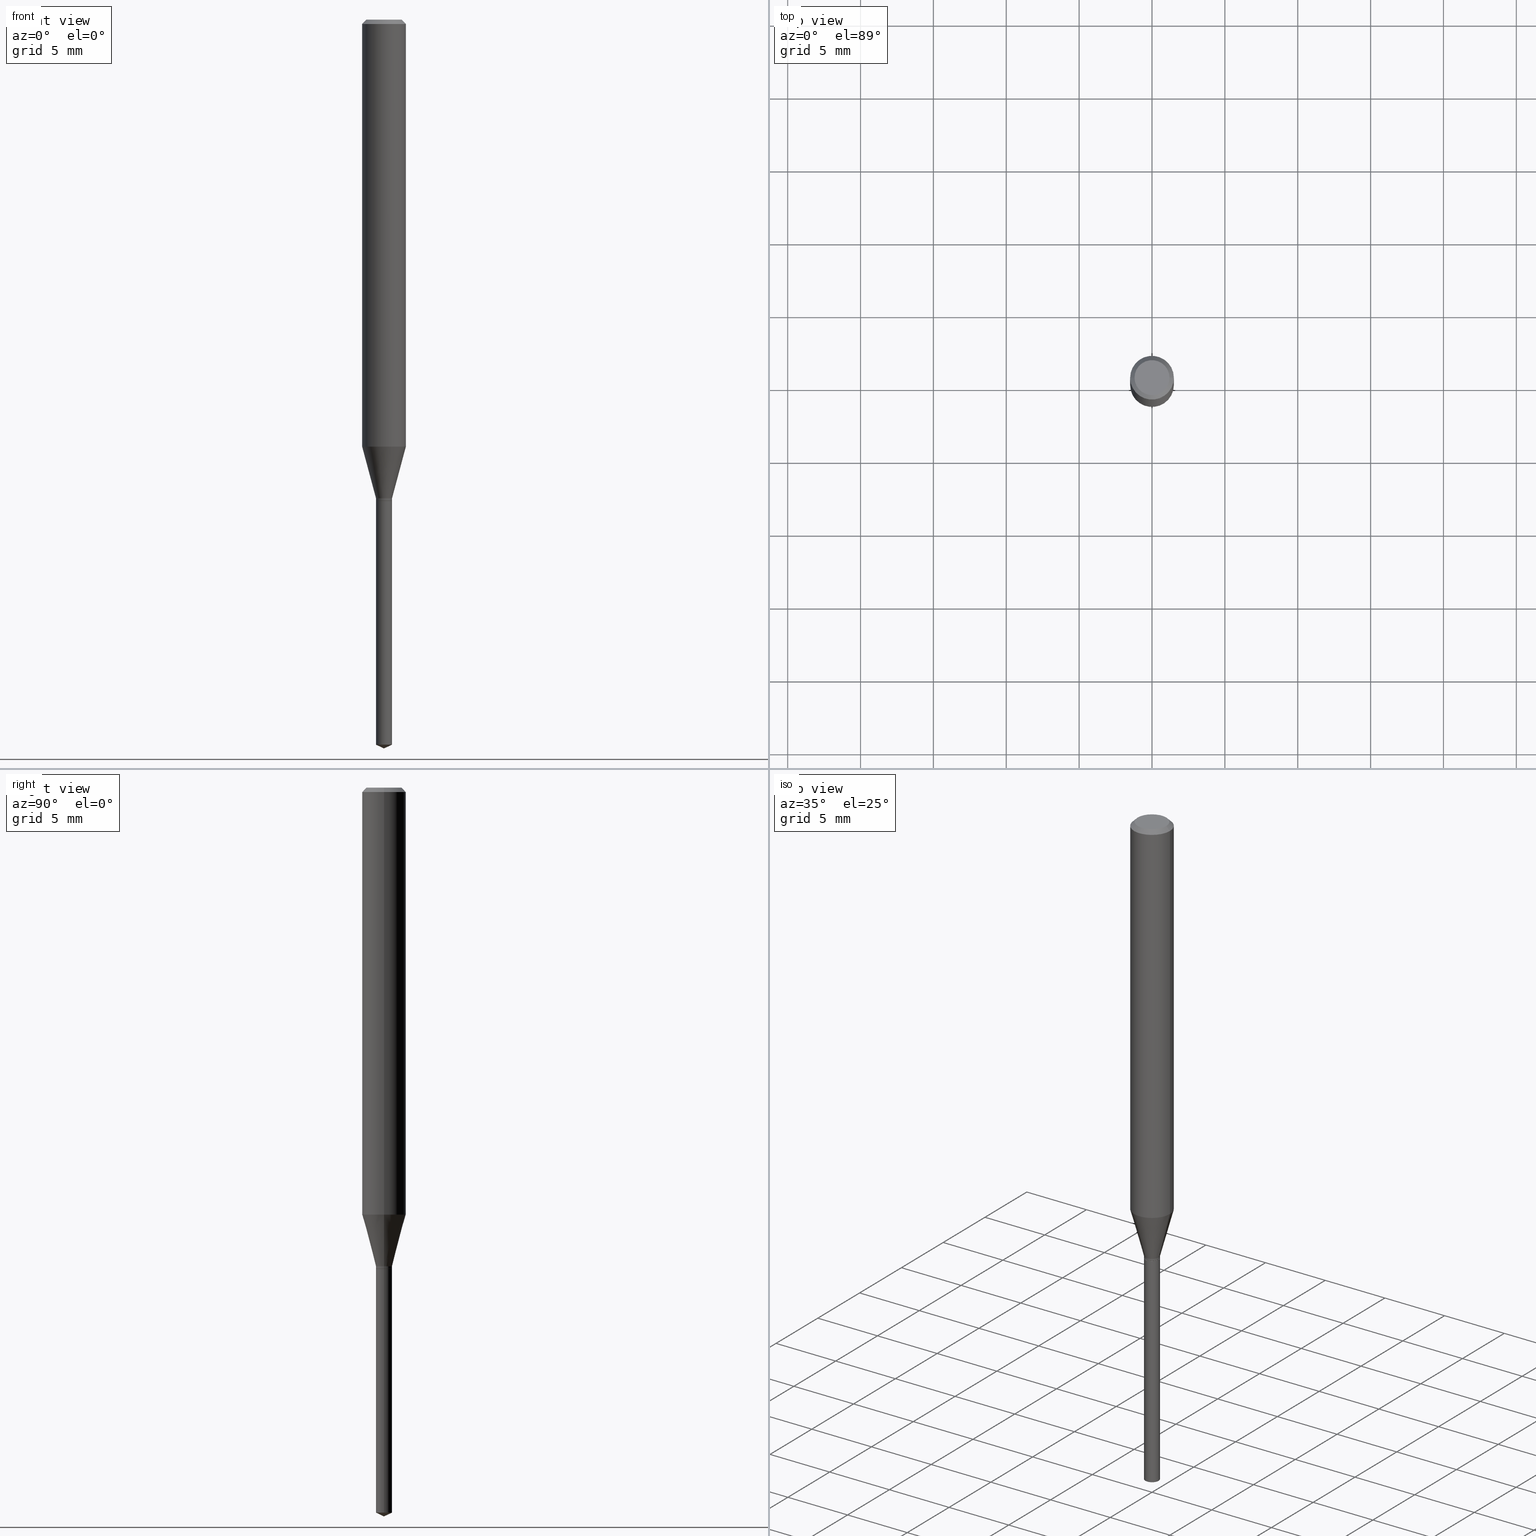
[diagram: canonical four-view strip — front | top / right | iso, engineering-drawing reading convention]
A machine part, canonical four-view strip (front | top / right | iso — engineering-drawing reading convention). The complete STEP part file that produces these views, byte-faithful:
ISO-10303-21;
HEADER;
FILE_DESCRIPTION (( 'STEP AP203' ),
    '1' );
FILE_NAME ('08151.STEP',
    '2024-04-24T13:13:14',
    ( '' ),
    ( '' ),
    'SwSTEP 2.0',
    'SolidWorks 2023',
    '' );
FILE_SCHEMA (( 'CONFIG_CONTROL_DESIGN' ));
ENDSEC;

DATA;
#1 = ORIENTED_EDGE ( 'NONE', *, *, #398, .F. ) ;
#2 = ORIENTED_EDGE ( 'NONE', *, *, #43, .T. ) ;
#3 = AXIS2_PLACEMENT_3D ( 'NONE', #163, #123, #161 ) ;
#4 = AXIS2_PLACEMENT_3D ( 'NONE', #292, #297, #401 ) ;
#5 = DIRECTION ( 'NONE',  ( 2.445468806185136597E-29, -3.491481338843145583E-15, -1.000000000000000000 ) ) ;
#6 = ORIENTED_EDGE ( 'NONE', *, *, #196, .T. ) ;
#7 = CARTESIAN_POINT ( 'NONE',  ( 4.132873053354867254E-48, -5.900647395337818946E-34, -1.690012582823346072E-19 ) ) ;
#8 = ADVANCED_FACE ( 'NONE', ( #469 ), #195, .T. ) ;
#9 = CIRCLE ( 'NONE', #22, 0.02114999999999999866 ) ;
#10 = DIRECTION ( 'NONE',  ( -2.445468806185136597E-29, 3.491481338843145583E-15, 1.000000000000000000 ) ) ;
#11 = CARTESIAN_POINT ( 'NONE',  ( 0.05905000000000000526, -4.535783407291119586E-16, -0.01181000000000007565 ) ) ;
#12 = CARTESIAN_POINT ( 'NONE',  ( 3.178375807398821559E-29, -4.537878296094435448E-15, -1.299699999999999855 ) ) ;
#13 = APPROVAL_DATE_TIME ( #16, #396 ) ;
#14 = ORIENTED_EDGE ( 'NONE', *, *, #234, .T. ) ;
#15 = CIRCLE ( 'NONE', #62, 0.02165000000000002686 ) ;
#16 = DATE_AND_TIME ( #359, #353 ) ;
#17 = FACE_OUTER_BOUND ( 'NONE', #157, .T. ) ;
#18 = DIRECTION ( 'NONE',  ( -2.445468806185136597E-29, 3.491481338843145583E-15, 1.000000000000000000 ) ) ;
#19 = ORIENTED_EDGE ( 'NONE', *, *, #293, .T. ) ;
#20 = PERSON_AND_ORGANIZATION_ROLE ( 'creator' ) ;
#21 = DIRECTION ( 'NONE',  ( 1.000000000000000000, -6.982962677686266711E-15, 4.876185090822587894E-29 ) ) ;
#22 = AXIS2_PLACEMENT_3D ( 'NONE', #371, #336, #366 ) ;
#23 = PERSON_AND_ORGANIZATION ( #288, #402 ) ;
#24 = VECTOR ( 'NONE', #435, 39.37007874015748143 ) ;
#25 = DIRECTION ( 'NONE',  ( 1.000000000000000000, -6.982962677686289588E-15, 0.000000000000000000 ) ) ;
#26 = APPROVAL ( #204, 'UNSPECIFIED' ) ;
#27 = FACE_OUTER_BOUND ( 'NONE', #395, .T. ) ;
#28 = ADVANCED_FACE ( 'NONE', ( #319 ), #205, .T. ) ;
#29 = DIRECTION ( 'NONE',  ( -0.9063077870366528233, 7.915267918739013053E-15, 0.4226182617406928910 ) ) ;
#30 = ORIENTED_EDGE ( 'NONE', *, *, #252, .T. ) ;
#31 = CC_DESIGN_DATE_AND_TIME_ASSIGNMENT ( #442, #291, ( #257 ) ) ;
#32 = CIRCLE ( 'NONE', #354, 0.04724000000000000421 ) ;
#33 = CARTESIAN_POINT ( 'NONE',  ( 0.05905000000000000526, -4.463468013801467941E-16, -0.01181000000000007565 ) ) ;
#34 = CIRCLE ( 'NONE', #322, 0.02165000000000002686 ) ;
#35 = ORIENTED_EDGE ( 'NONE', *, *, #52, .F. ) ;
#36 = VERTEX_POINT ( 'NONE', #164 ) ;
#37 = DIRECTION ( 'NONE',  ( -2.445468806185136597E-29, 3.491481338843145583E-15, 1.000000000000000000 ) ) ;
#38 = EDGE_LOOP ( 'NONE', ( #341, #450, #209, #152 ) ) ;
#39 = EDGE_CURVE ( 'NONE', #413, #229, #323, .T. ) ;
#40 = DIRECTION ( 'NONE',  ( 1.000000000000000000, -6.982962677686269866E-15, 0.000000000000000000 ) ) ;
#41 = EDGE_LOOP ( 'NONE', ( #381, #6, #248, #417 ) ) ;
#42 = CIRCLE ( 'NONE', #382, 0.05905000000000000526 ) ;
#43 = EDGE_CURVE ( 'NONE', #64, #36, #32, .T. ) ;
#44 = CARTESIAN_POINT ( 'NONE',  ( 0.000000000000000000, 0.000000000000000000, 0.000000000000000000 ) ) ;
#45 = CARTESIAN_POINT ( 'NONE',  ( 3.177153072995729878E-29, -4.536132555425015522E-15, -1.299200000000000133 ) ) ;
#46 = AXIS2_PLACEMENT_3D ( 'NONE', #225, #481, #40 ) ;
#47 = AXIS2_PLACEMENT_3D ( 'NONE', #12, #425, #420 ) ;
#48 = LENGTH_MEASURE_WITH_UNIT ( LENGTH_MEASURE( 0.02539999999999999897 ), #424 );
#49 = CARTESIAN_POINT ( 'NONE',  ( 3.178375807398821559E-29, -4.537878296094435448E-15, -1.299699999999999855 ) ) ;
#50 = DIRECTION ( 'NONE',  ( 1.000000000000000000, -6.982962677686271444E-15, 0.000000000000000000 ) ) ;
#51 = CARTESIAN_POINT ( 'NONE',  ( 3.162480260158618503E-29, -4.515183667391955113E-15, -1.293199999999999683 ) ) ;
#52 = EDGE_CURVE ( 'NONE', #452, #413, #437, .T. ) ;
#53 = CARTESIAN_POINT ( 'NONE',  ( 0.02114999999999999866, -4.685567956727499383E-15, -1.299699999999999633 ) ) ;
#54 = CIRCLE ( 'NONE', #69, 0.02164999999999999564 ) ;
#55 = APPROVAL_ROLE ( '' ) ;
#56 = CONICAL_SURFACE ( 'NONE', #125, 84.42940631927551465, 1.134464013796321336 ) ;
#57 = CARTESIAN_POINT ( 'NONE',  ( 3.178375807398820998E-29, -4.537878296094433870E-15, -1.299699999999999633 ) ) ;
#58 = APPROVAL_STATUS ( 'not_yet_approved' ) ;
#59 = FACE_OUTER_BOUND ( 'NONE', #113, .T. ) ;
#60 = SECURITY_CLASSIFICATION_LEVEL ( 'unclassified' ) ;
#61 = CARTESIAN_POINT ( 'NONE',  ( 3.178375807398821559E-29, -4.537878296094435448E-15, -1.299699999999999855 ) ) ;
#62 = AXIS2_PLACEMENT_3D ( 'NONE', #45, #238, #192 ) ;
#63 = CYLINDRICAL_SURFACE ( 'NONE', #388, 0.02165000000000002686 ) ;
#64 = VERTEX_POINT ( 'NONE', #471 ) ;
#65 = CARTESIAN_POINT ( 'NONE',  ( 0.02165000000000002686, -1.511811419719078543E-16, 1.055692271959821365E-30 ) ) ;
#66 = EDGE_LOOP ( 'NONE', ( #146, #110, #264, #150 ) ) ;
#67 = CLOSED_SHELL ( 'NONE', ( #28, #136, #445, #333, #259 ) ) ;
#68 = CARTESIAN_POINT ( 'NONE',  ( -0.05905000000000000526, -1.614965332005994340E-15, -0.01181000000000007565 ) ) ;
#69 = AXIS2_PLACEMENT_3D ( 'NONE', #181, #383, #219 ) ;
#70 = VERTEX_POINT ( 'NONE', #473 ) ;
#71 = CARTESIAN_POINT ( 'NONE',  ( 4.815128079378533515E-29, -6.874726756182153211E-15, -1.968999999999999861 ) ) ;
#72 = ORIENTED_EDGE ( 'NONE', *, *, #426, .T. ) ;
#73 = CARTESIAN_POINT ( 'NONE',  ( 2.888098660104664642E-31, -4.123439461173780879E-17, -0.01181000000000007565 ) ) ;
#74 = ORIENTED_EDGE ( 'NONE', *, *, #196, .F. ) ;
#75 =( NAMED_UNIT ( * ) SI_UNIT ( $, .STERADIAN. ) SOLID_ANGLE_UNIT ( ) );
#76 = FACE_OUTER_BOUND ( 'NONE', #387, .T. ) ;
#77 = AXIS2_PLACEMENT_3D ( 'NONE', #470, #389, #126 ) ;
#78 = AXIS2_PLACEMENT_3D ( 'NONE', #122, #273, #405 ) ;
#79 = FACE_OUTER_BOUND ( 'NONE', #178, .T. ) ;
#80 = DIRECTION ( 'NONE',  ( -2.445468806185136877E-29, 3.491481338843145188E-15, 1.000000000000000000 ) ) ;
#81 = APPROVAL ( #58, 'UNSPECIFIED' ) ;
#82 = DIRECTION ( 'NONE',  ( -2.445468806185136597E-29, 3.491481338843145583E-15, 1.000000000000000000 ) ) ;
#83 = DIRECTION ( 'NONE',  ( -2.445468806185136597E-29, 3.491481338843145583E-15, 1.000000000000000000 ) ) ;
#84 = DIRECTION ( 'NONE',  ( 1.000000000000000000, -6.982962677686260400E-15, 0.000000000000000000 ) ) ;
#85 = CARTESIAN_POINT ( 'NONE',  ( 0.02165000000000002686, -4.687313697396923253E-15, -1.299200000000000133 ) ) ;
#86 = VECTOR ( 'NONE', #331, 39.37007874015748854 ) ;
#87 = ADVANCED_BREP_SHAPE_REPRESENTATION ( '08151', ( #378, #197, #78 ), #485 ) ;
#88 = CARTESIAN_POINT ( 'NONE',  ( 0.02165000000000002339, -4.666364809363862844E-15, -1.293199999999999683 ) ) ;
#89 = EDGE_CURVE ( 'NONE', #191, #379, #271, .T. ) ;
#90 = VERTEX_POINT ( 'NONE', #85 ) ;
#91 = PERSON_AND_ORGANIZATION_ROLE ( 'creator' ) ;
#92 = DIRECTION ( 'NONE',  ( -2.445468806185136597E-29, 3.491481338843145583E-15, 1.000000000000000000 ) ) ;
#93 = PRODUCT_DEFINITION_SHAPE ( 'NONE', 'NONE',  #321 ) ;
#94 = PERSON_AND_ORGANIZATION ( #288, #402 ) ;
#95 = LINE ( 'NONE', #65, #158 ) ;
#96 = ORIENTED_EDGE ( 'NONE', *, *, #215, .F. ) ;
#97 = AXIS2_PLACEMENT_3D ( 'NONE', #478, #325, #475 ) ;
#98 = COORDINATED_UNIVERSAL_TIME_OFFSET ( 5, 0, .BEHIND. ) ;
#99 = DIRECTION ( 'NONE',  ( 1.000000000000000000, -6.982962677686269866E-15, 0.000000000000000000 ) ) ;
#100 = EDGE_CURVE ( 'NONE', #129, #379, #457, .T. ) ;
#101 = PERSON_AND_ORGANIZATION ( #288, #402 ) ;
#102 = DIRECTION ( 'NONE',  ( 1.000000000000000000, -6.982962677686267499E-15, 4.876176775795936353E-29 ) ) ;
#103 = EDGE_LOOP ( 'NONE', ( #298, #30, #96, #222 ) ) ;
#104 = APPROVAL_STATUS ( 'not_yet_approved' ) ;
#105 = ADVANCED_FACE ( 'NONE', ( #76 ), #233, .T. ) ;
#106 = CARTESIAN_POINT ( 'NONE',  ( -9.146317137672921654E-28, 1.305851684738629534E-13, 37.40107874015748024 ) ) ;
#107 = VECTOR ( 'NONE', #142, 39.37007874015748143 ) ;
#108 = DIRECTION ( 'NONE',  ( -2.445468806185136877E-29, 3.491481338843145188E-15, 1.000000000000000000 ) ) ;
#109 = EDGE_CURVE ( 'NONE', #411, #70, #9, .T. ) ;
#110 = ORIENTED_EDGE ( 'NONE', *, *, #461, .T. ) ;
#111 = CARTESIAN_POINT ( 'NONE',  ( -0.05905000000000000526, 3.711095515056362547E-16, -0.01181000000000007565 ) ) ;
#112 = ORIENTED_EDGE ( 'NONE', *, *, #467, .F. ) ;
#113 = EDGE_LOOP ( 'NONE', ( #489, #313, #35, #268 ) ) ;
#114 = AXIS2_PLACEMENT_3D ( 'NONE', #377, #380, #263 ) ;
#115 = APPROVAL_PERSON_ORGANIZATION ( #361, #26, #55 ) ;
#116 = EDGE_LOOP ( 'NONE', ( #156, #2 ) ) ;
#117 = AXIS2_PLACEMENT_3D ( 'NONE', #49, #357, #360 ) ;
#118 = CARTESIAN_POINT ( 'NONE',  ( -0.02165000000000002686, 1.538325022920618811E-16, -1.064949447040188428E-30 ) ) ;
#119 = ORIENTED_EDGE ( 'NONE', *, *, #281, .T. ) ;
#120 = LINE ( 'NONE', #88, #484 ) ;
#121 = VERTEX_POINT ( 'NONE', #131 ) ;
#122 = CARTESIAN_POINT ( 'NONE',  ( 0.000000000000000000, 0.000000000000000000, 0.000000000000000000 ) ) ;
#123 = DIRECTION ( 'NONE',  ( -2.445468806185136597E-29, 3.491481338843145583E-15, 1.000000000000000000 ) ) ;
#124 = CONICAL_SURFACE ( 'NONE', #4, 0.02114999999999999866, 0.7853981633981227395 ) ;
#125 = AXIS2_PLACEMENT_3D ( 'NONE', #106, #253, #406 ) ;
#126 = DIRECTION ( 'NONE',  ( 1.000000000000000000, -6.982962677686267499E-15, 0.000000000000000000 ) ) ;
#127 = PLANE ( 'NONE',  #400 ) ;
#128 = CARTESIAN_POINT ( 'NONE',  ( -0.02165000000000002339, -4.361351165099893010E-15, -1.293199999999999683 ) ) ;
#129 = VERTEX_POINT ( 'NONE', #174 ) ;
#130 = PERSON_AND_ORGANIZATION ( #288, #402 ) ;
#131 = CARTESIAN_POINT ( 'NONE',  ( 0.05905000000000015098, -4.440191186450307224E-15, -1.153621299796923516 ) ) ;
#132 = APPLICATION_PROTOCOL_DEFINITION ( 'international standard', 'config_control_design', 1994, #303 ) ;
#133 = LINE ( 'NONE', #290, #24 ) ;
#134 = ADVANCED_FACE ( 'NONE', ( #59 ), #443, .T. ) ;
#135 = CARTESIAN_POINT ( 'NONE',  ( 0.02165000000000000258, -6.990659436019002382E-15, -1.958904439200944481 ) ) ;
#136 = ADVANCED_FACE ( 'NONE', ( #254 ), #56, .T. ) ;
#137 = VECTOR ( 'NONE', #418, 39.37007874015748143 ) ;
#138 = PERSON_AND_ORGANIZATION_ROLE ( 'classification_officer' ) ;
#139 = DIRECTION ( 'NONE',  ( -2.445468806185136597E-29, 3.491481338843145583E-15, 1.000000000000000000 ) ) ;
#140 = DIRECTION ( 'NONE',  ( 1.000000000000000000, -6.982962677686260400E-15, 0.000000000000000000 ) ) ;
#141 = EDGE_CURVE ( 'NONE', #36, #64, #372, .T. ) ;
#142 = DIRECTION ( 'NONE',  ( -0.7071067811870244135, 7.493145998872077032E-15, 0.7071067811860706209 ) ) ;
#143 = CIRCLE ( 'NONE', #172, 0.05905000000000015098 ) ;
#144 = CC_DESIGN_APPROVAL ( #26, ( #321 ) ) ;
#145 = CARTESIAN_POINT ( 'NONE',  ( 0.000000000000000000, 0.000000000000000000, 0.000000000000000000 ) ) ;
#146 = ORIENTED_EDGE ( 'NONE', *, *, #453, .T. ) ;
#147 = FACE_OUTER_BOUND ( 'NONE', #66, .T. ) ;
#148 = ORIENTED_EDGE ( 'NONE', *, *, #43, .F. ) ;
#149 = LINE ( 'NONE', #33, #137 ) ;
#150 = ORIENTED_EDGE ( 'NONE', *, *, #262, .F. ) ;
#151 = DIRECTION ( 'NONE',  ( -2.445468806185136597E-29, 3.491481338843145583E-15, 1.000000000000000000 ) ) ;
#152 = ORIENTED_EDGE ( 'NONE', *, *, #100, .F. ) ;
#153 = CARTESIAN_POINT ( 'NONE',  ( 1.490111218439942982E-28, 1.224974741248921704E-14, -1.299699999999999855 ) ) ;
#154 = ORIENTED_EDGE ( 'NONE', *, *, #221, .F. ) ;
#155 = APPLICATION_PROTOCOL_DEFINITION ( 'international standard', 'config_control_design', 1994, #329 ) ;
#156 = ORIENTED_EDGE ( 'NONE', *, *, #141, .T. ) ;
#157 = EDGE_LOOP ( 'NONE', ( #310, #255 ) ) ;
#158 = VECTOR ( 'NONE', #490, 39.37007874015748143 ) ;
#159 = LOCAL_TIME ( 9, 13, 14.00000000000000000, #98 ) ;
#160 = DIRECTION ( 'NONE',  ( 0.2588190451025213501, 1.565188264969621968E-15, 0.9659258262890682012 ) ) ;
#161 = DIRECTION ( 'NONE',  ( 1.000000000000000000, -6.982962677686260400E-15, 0.000000000000000000 ) ) ;
#162 = CARTESIAN_POINT ( 'NONE',  ( 2.821144902804128605E-29, -4.027847240332933093E-15, -1.153621299796923516 ) ) ;
#163 = CARTESIAN_POINT ( 'NONE',  ( 3.162480260158618503E-29, -4.515183667391955113E-15, -1.293199999999999683 ) ) ;
#164 = CARTESIAN_POINT ( 'NONE',  ( -0.04724000000000000421, 3.504923541997677355E-16, -3.380025165670481712E-19 ) ) ;
#165 = CONICAL_SURFACE ( 'NONE', #315, 0.05905000000000000526, 0.7853981633974453924 ) ;
#166 = PLANE ( 'NONE',  #97 ) ;
#167 = CC_DESIGN_PERSON_AND_ORGANIZATION_ASSIGNMENT ( #130, #91, ( #321 ) ) ;
#168 = FACE_OUTER_BOUND ( 'NONE', #430, .T. ) ;
#169 = PERSON_AND_ORGANIZATION_ROLE ( 'design_supplier' ) ;
#170 = UNCERTAINTY_MEASURE_WITH_UNIT (LENGTH_MEASURE( 1.000000000000000082E-05 ), #356, 'distance_accuracy_value', 'NONE');
#171 = DIRECTION ( 'NONE',  ( -2.445468806185136597E-29, 3.491481338843145583E-15, 1.000000000000000000 ) ) ;
#172 = AXIS2_PLACEMENT_3D ( 'NONE', #350, #82, #50 ) ;
#173 = COORDINATED_UNIVERSAL_TIME_OFFSET ( 5, 0, .BEHIND. ) ;
#174 = CARTESIAN_POINT ( 'NONE',  ( -0.02164999999999999564, -5.534845792778702158E-15, -1.299699999999999855 ) ) ;
#175 = CARTESIAN_POINT ( 'NONE',  ( 4.790439700363498334E-29, -6.839478294047094651E-15, -1.958904439200944481 ) ) ;
#176 = EDGE_CURVE ( 'NONE', #326, #191, #432, .T. ) ;
#177 = DIRECTION ( 'NONE',  ( 1.000000000000000000, -6.982962677686289588E-15, 0.000000000000000000 ) ) ;
#178 = EDGE_LOOP ( 'NONE', ( #346, #344, #242, #182 ) ) ;
#179 = CONICAL_SURFACE ( 'NONE', #416, 0.02114999999999999866, 0.7853981633981227395 ) ;
#180 = ADVANCED_FACE ( 'NONE', ( #168 ), #63, .T. ) ;
#181 = CARTESIAN_POINT ( 'NONE',  ( 4.790439700363498334E-29, -6.839478294047094651E-15, -1.958904439200944481 ) ) ;
#182 = ORIENTED_EDGE ( 'NONE', *, *, #276, .T. ) ;
#183 = FACE_OUTER_BOUND ( 'NONE', #184, .T. ) ;
#184 = EDGE_LOOP ( 'NONE', ( #148, #19, #317, #1 ) ) ;
#185 = DESIGN_CONTEXT ( 'detailed design', #303, 'design' ) ;
#186 = CYLINDRICAL_SURFACE ( 'NONE', #409, 0.05905000000000008159 ) ;
#187 = VERTEX_POINT ( 'NONE', #217 ) ;
#188 = EDGE_CURVE ( 'NONE', #367, #90, #34, .T. ) ;
#189 = CIRCLE ( 'NONE', #216, 0.02165000000000002339 ) ;
#190 = DIRECTION ( 'NONE',  ( -1.000000000000000000, 6.982962677686265922E-15, 0.000000000000000000 ) ) ;
#191 = VERTEX_POINT ( 'NONE', #135 ) ;
#192 = DIRECTION ( 'NONE',  ( 1.000000000000000000, -6.982962677686259611E-15, 0.000000000000000000 ) ) ;
#193 = DIRECTION ( 'NONE',  ( 1.000000000000000000, -6.982962677686271444E-15, 0.000000000000000000 ) ) ;
#194 = DIRECTION ( 'NONE',  ( -2.445468806185136597E-29, 3.491481338843145583E-15, 1.000000000000000000 ) ) ;
#195 = CONICAL_SURFACE ( 'NONE', #246, 0.02165000000000002339, 0.2617993877991500740 ) ;
#196 = EDGE_CURVE ( 'NONE', #413, #452, #189, .T. ) ;
#197 = MANIFOLD_SOLID_BREP ( 'Body-Move/Copy2[2]', #200 ) ;
#198 = DIRECTION ( 'NONE',  ( 1.000000000000000000, -6.982962677686260400E-15, 0.000000000000000000 ) ) ;
#199 = AXIS2_PLACEMENT_3D ( 'NONE', #73, #300, #190 ) ;
#200 = CLOSED_SHELL ( 'NONE', ( #206, #328, #347, #447, #134, #180, #8, #105, #433, #482, #436, #218 ) ) ;
#201 = FACE_OUTER_BOUND ( 'NONE', #226, .T. ) ;
#202 = DIRECTION ( 'NONE',  ( -2.445468806185136597E-29, 3.491481338843145583E-15, 1.000000000000000000 ) ) ;
#203 = CC_DESIGN_PERSON_AND_ORGANIZATION_ASSIGNMENT ( #23, #169, ( #249 ) ) ;
#204 = APPROVAL_STATUS ( 'not_yet_approved' ) ;
#205 = CYLINDRICAL_SURFACE ( 'NONE', #117, 0.02164999999999999564 ) ;
#206 = ADVANCED_FACE ( 'NONE', ( #245 ), #124, .T. ) ;
#207 = DIRECTION ( 'NONE',  ( 0.7071067811870244135, -2.468850131087252128E-15, 0.7071067811860706209 ) ) ;
#208 = AXIS2_PLACEMENT_3D ( 'NONE', #61, #375, #214 ) ;
#209 = ORIENTED_EDGE ( 'NONE', *, *, #89, .T. ) ;
#210 = CALENDAR_DATE ( 2024, 24, 4 ) ;
#211 = DIRECTION ( 'NONE',  ( -2.445468806185136597E-29, 3.491481338843145583E-15, 1.000000000000000000 ) ) ;
#212 = DIRECTION ( 'NONE',  ( -2.445468806185136597E-29, 3.491481338843145583E-15, 1.000000000000000000 ) ) ;
#213 = APPROVAL_ROLE ( '' ) ;
#214 = DIRECTION ( 'NONE',  ( 1.000000000000000000, -6.982962677686269866E-15, 0.000000000000000000 ) ) ;
#215 = EDGE_CURVE ( 'NONE', #379, #129, #421, .T. ) ;
#216 = AXIS2_PLACEMENT_3D ( 'NONE', #440, #171, #140 ) ;
#217 = CARTESIAN_POINT ( 'NONE',  ( -0.02165000000000000258, -6.685645791755032548E-15, -1.958904439200944481 ) ) ;
#218 = ADVANCED_FACE ( 'NONE', ( #27 ), #179, .T. ) ;
#219 = DIRECTION ( 'NONE',  ( 1.000000000000000000, -6.982962677686269866E-15, 0.000000000000000000 ) ) ;
#220 = ORIENTED_EDGE ( 'NONE', *, *, #461, .F. ) ;
#221 = EDGE_CURVE ( 'NONE', #187, #191, #439, .T. ) ;
#222 = ORIENTED_EDGE ( 'NONE', *, *, #89, .F. ) ;
#223 = VECTOR ( 'NONE', #468, 39.37007874015748143 ) ;
#224 = CC_DESIGN_APPROVAL ( #81, ( #249 ) ) ;
#225 = CARTESIAN_POINT ( 'NONE',  ( 3.178375807398821559E-29, -4.537878296094435448E-15, -1.299699999999999855 ) ) ;
#226 = EDGE_LOOP ( 'NONE', ( #460, #486 ) ) ;
#227 = EDGE_LOOP ( 'NONE', ( #261, #466, #384 ) ) ;
#228 = FACE_OUTER_BOUND ( 'NONE', #38, .T. ) ;
#229 = VERTEX_POINT ( 'NONE', #295 ) ;
#230 = PRODUCT_RELATED_PRODUCT_CATEGORY ( 'detail', '', ( #472 ) ) ;
#231 = AXIS2_PLACEMENT_3D ( 'NONE', #153, #316, #422 ) ;
#232 = CARTESIAN_POINT ( 'NONE',  ( 0.02165000000000002339, -4.666364809363862844E-15, -1.293199999999999683 ) ) ;
#233 = CYLINDRICAL_SURFACE ( 'NONE', #334, 0.05905000000000008159 ) ;
#234 = EDGE_CURVE ( 'NONE', #411, #90, #397, .T. ) ;
#235 = DIRECTION ( 'NONE',  ( -1.000000000000000000, 6.982962677686265922E-15, 0.000000000000000000 ) ) ;
#236 = ORIENTED_EDGE ( 'NONE', *, *, #358, .F. ) ;
#237 = CC_DESIGN_PERSON_AND_ORGANIZATION_ASSIGNMENT ( #431, #138, ( #257 ) ) ;
#238 = DIRECTION ( 'NONE',  ( -2.445468806185136597E-29, 3.491481338843145583E-15, 1.000000000000000000 ) ) ;
#239 = DIRECTION ( 'NONE',  ( 1.000000000000000000, -6.982962677686266711E-15, 4.876185090822587894E-29 ) ) ;
#240 = AXIS2_PLACEMENT_3D ( 'NONE', #327, #18, #21 ) ;
#241 = CARTESIAN_POINT ( 'NONE',  ( -0.02165000000000002339, -4.371825609116423609E-15, -1.293199999999999683 ) ) ;
#242 = ORIENTED_EDGE ( 'NONE', *, *, #398, .T. ) ;
#243 = DIRECTION ( 'NONE',  ( -2.445468806185136597E-29, 3.491481338843145583E-15, 1.000000000000000000 ) ) ;
#244 = APPROVAL_ROLE ( '' ) ;
#245 = FACE_OUTER_BOUND ( 'NONE', #306, .T. ) ;
#246 = AXIS2_PLACEMENT_3D ( 'NONE', #51, #202, #198 ) ;
#247 = VECTOR ( 'NONE', #29, 39.37007874015748854 ) ;
#248 = ORIENTED_EDGE ( 'NONE', *, *, #467, .T. ) ;
#249 = PRODUCT_DEFINITION_FORMATION_WITH_SPECIFIED_SOURCE ( 'ANY', '', #472, .NOT_KNOWN. ) ;
#250 = DATE_AND_TIME ( #407, #159 ) ;
#251 = LINE ( 'NONE', #404, #308 ) ;
#252 = EDGE_CURVE ( 'NONE', #187, #129, #251, .T. ) ;
#253 = DIRECTION ( 'NONE',  ( -2.445468806185136597E-29, 3.491481338843145583E-15, 1.000000000000000000 ) ) ;
#254 = FACE_OUTER_BOUND ( 'NONE', #227, .T. ) ;
#255 = ORIENTED_EDGE ( 'NONE', *, *, #100, .T. ) ;
#256 = AXIS2_PLACEMENT_3D ( 'NONE', #385, #37, #177 ) ;
#257 = SECURITY_CLASSIFICATION ( '', '', #60 ) ;
#258 = CARTESIAN_POINT ( 'NONE',  ( -0.02165000000000002686, -4.371825609116423609E-15, -1.299200000000000133 ) ) ;
#259 = ADVANCED_FACE ( 'NONE', ( #17 ), #166, .F. ) ;
#260 = DIRECTION ( 'NONE',  ( -2.445468806185136597E-29, 3.491481338843145583E-15, 1.000000000000000000 ) ) ;
#261 = ORIENTED_EDGE ( 'NONE', *, *, #176, .F. ) ;
#262 = EDGE_CURVE ( 'NONE', #121, #480, #133, .T. ) ;
#263 = DIRECTION ( 'NONE',  ( 1.000000000000000000, -6.982962677686268288E-15, 0.000000000000000000 ) ) ;
#264 = ORIENTED_EDGE ( 'NONE', *, *, #349, .F. ) ;
#265 = AXIS2_PLACEMENT_3D ( 'NONE', #162, #194, #193 ) ;
#266 = LINE ( 'NONE', #483, #247 ) ;
#267 = VECTOR ( 'NONE', #280, 39.37007874015747433 ) ;
#268 = ORIENTED_EDGE ( 'NONE', *, *, #269, .F. ) ;
#269 = EDGE_CURVE ( 'NONE', #90, #452, #95, .T. ) ;
#270 = EDGE_LOOP ( 'NONE', ( #463, #390, #456, #112 ) ) ;
#271 = LINE ( 'NONE', #427, #275 ) ;
#272 = AXIS2_PLACEMENT_3D ( 'NONE', #175, #243, #99 ) ;
#273 = DIRECTION ( 'NONE',  ( 0.000000000000000000, 0.000000000000000000, 1.000000000000000000 ) ) ;
#274 = LOCAL_TIME ( 9, 13, 14.00000000000000000, #444 ) ;
#275 = VECTOR ( 'NONE', #80, 39.37007874015748143 ) ;
#276 = EDGE_CURVE ( 'NONE', #302, #480, #449, .T. ) ;
#277 = DIMENSIONAL_EXPONENTS ( 1.000000000000000000, 0.000000000000000000, 0.000000000000000000, 0.000000000000000000, 0.000000000000000000, 0.000000000000000000, 0.000000000000000000 ) ;
#278 = CARTESIAN_POINT ( 'NONE',  ( -0.05905000000000008159, 4.195754854663397395E-16, -2.904631170795525745E-30 ) ) ;
#279 = ORIENTED_EDGE ( 'NONE', *, *, #281, .F. ) ;
#280 = DIRECTION ( 'NONE',  ( -0.2588190451025213501, 5.211531920934551042E-15, 0.9659258262890682012 ) ) ;
#281 = EDGE_CURVE ( 'NONE', #70, #367, #337, .T. ) ;
#282 = VECTOR ( 'NONE', #412, 39.37007874015748143 ) ;
#283 = ORIENTED_EDGE ( 'NONE', *, *, #314, .F. ) ;
#284 = VECTOR ( 'NONE', #207, 39.37007874015748143 ) ;
#285 = LOCAL_TIME ( 9, 13, 14.00000000000000000, #173 ) ;
#286 = DATE_AND_TIME ( #474, #285 ) ;
#287 = DIRECTION ( 'NONE',  ( 1.000000000000000000, -6.982962677686266711E-15, 4.876176775795935793E-29 ) ) ;
#288 = PERSON ( 'UNSPECIFIED', 'UNSPECIFIED', 'UNSPECIFIED', ('UNSPECIFIED'), ('UNSPECIFIED'), ('UNSPECIFIED') ) ;
#289 = PERSON_AND_ORGANIZATION ( #288, #402 ) ;
#290 = CARTESIAN_POINT ( 'NONE',  ( 0.05905000000000008159, -4.123439461173746736E-16, 2.879382386107504424E-30 ) ) ;
#291 = DATE_TIME_ROLE ( 'classification_date' ) ;
#292 = CARTESIAN_POINT ( 'NONE',  ( 3.178375807398820998E-29, -4.537878296094433870E-15, -1.299699999999999633 ) ) ;
#293 = EDGE_CURVE ( 'NONE', #64, #480, #149, .T. ) ;
#294 = COORDINATED_UNIVERSAL_TIME_OFFSET ( 5, 0, .BEHIND. ) ;
#295 = CARTESIAN_POINT ( 'NONE',  ( -0.05905000000000015098, -3.608271754866592022E-15, -1.153621299796923516 ) ) ;
#296 = APPROVAL_DATE_TIME ( #250, #26 ) ;
#297 = DIRECTION ( 'NONE',  ( -2.445468806185136597E-29, 3.491481338843145583E-15, 1.000000000000000000 ) ) ;
#298 = ORIENTED_EDGE ( 'NONE', *, *, #307, .T. ) ;
#299 = CONICAL_SURFACE ( 'NONE', #77, 84.42940631927551465, 1.134464013796321336 ) ;
#300 = DIRECTION ( 'NONE',  ( 2.445468806185136597E-29, -3.491481338843145583E-15, -1.000000000000000000 ) ) ;
#301 = CC_DESIGN_DATE_AND_TIME_ASSIGNMENT ( #370, #477, ( #321 ) ) ;
#302 = VERTEX_POINT ( 'NONE', #68 ) ;
#304 = DIRECTION ( 'NONE',  ( 1.000000000000000000, -6.982962677686267499E-15, 4.876176775795936353E-29 ) ) ;
#303 = APPLICATION_CONTEXT ( 'configuration controlled 3d designs of mechanical parts and assemblies' ) ;
#305 = ORIENTED_EDGE ( 'NONE', *, *, #188, .T. ) ;
#306 = EDGE_LOOP ( 'NONE', ( #364, #119, #373, #455 ) ) ;
#307 = EDGE_CURVE ( 'NONE', #191, #187, #54, .T. ) ;
#308 = VECTOR ( 'NONE', #363, 39.37007874015748143 ) ;
#309 = LOCAL_TIME ( 9, 13, 14.00000000000000000, #294 ) ;
#310 = ORIENTED_EDGE ( 'NONE', *, *, #215, .T. ) ;
#311 = CC_DESIGN_PERSON_AND_ORGANIZATION_ASSIGNMENT ( #289, #368, ( #472 ) ) ;
#312 = DIRECTION ( 'NONE',  ( -1.000000000000000000, 6.982962677686265922E-15, -4.876176775795935793E-29 ) ) ;
#313 = ORIENTED_EDGE ( 'NONE', *, *, #358, .T. ) ;
#314 = EDGE_CURVE ( 'NONE', #326, #187, #266, .T. ) ;
#315 = AXIS2_PLACEMENT_3D ( 'NONE', #465, #5, #235 ) ;
#316 = DIRECTION ( 'NONE',  ( -2.438088387897960049E-29, 3.491481338843145188E-15, 1.000000000000000000 ) ) ;
#317 = ORIENTED_EDGE ( 'NONE', *, *, #349, .T. ) ;
#318 = FACE_OUTER_BOUND ( 'NONE', #116, .T. ) ;
#319 = FACE_OUTER_BOUND ( 'NONE', #103, .T. ) ;
#320 = CARTESIAN_POINT ( 'NONE',  ( 8.265746106709734507E-48, -1.180129479067563789E-33, -3.380025165646692144E-19 ) ) ;
#321 = PRODUCT_DEFINITION ( 'UNKNOWN', '', #249, #185 ) ;
#322 = AXIS2_PLACEMENT_3D ( 'NONE', #369, #139, #476 ) ;
#323 = LINE ( 'NONE', #128, #267 ) ;
#324 = APPROVAL_DATE_TIME ( #286, #81 ) ;
#325 = DIRECTION ( 'NONE',  ( 2.438088387897960049E-29, -3.491481338843145188E-15, -1.000000000000000000 ) ) ;
#326 = VERTEX_POINT ( 'NONE', #71 ) ;
#327 = CARTESIAN_POINT ( 'NONE',  ( 8.265746106709734507E-48, -1.180129479067563789E-33, -3.380025165646692144E-19 ) ) ;
#328 = ADVANCED_FACE ( 'NONE', ( #183 ), #332, .T. ) ;
#329 = APPLICATION_CONTEXT ( 'configuration controlled 3d designs of mechanical parts and assemblies' ) ;
#330 = CALENDAR_DATE ( 2024, 24, 4 ) ;
#331 = DIRECTION ( 'NONE',  ( 0.9063077870366528233, -4.853149677051422177E-15, 0.4226182617406928910 ) ) ;
#332 = CONICAL_SURFACE ( 'NONE', #199, 0.05905000000000000526, 0.7853981633974453924 ) ;
#333 = ADVANCED_FACE ( 'NONE', ( #228 ), #488, .T. ) ;
#334 = AXIS2_PLACEMENT_3D ( 'NONE', #44, #83, #102 ) ;
#335 = DIRECTION ( 'NONE',  ( 1.000000000000000000, -6.982962677686266711E-15, 4.876176775795935793E-29 ) ) ;
#336 = DIRECTION ( 'NONE',  ( -2.445468806185136597E-29, 3.491481338843145583E-15, 1.000000000000000000 ) ) ;
#337 = LINE ( 'NONE', #454, #107 ) ;
#338 = ORIENTED_EDGE ( 'NONE', *, *, #276, .F. ) ;
#339 = APPROVAL_PERSON_ORGANIZATION ( #101, #396, #244 ) ;
#340 = ORIENTED_EDGE ( 'NONE', *, *, #176, .T. ) ;
#341 = ORIENTED_EDGE ( 'NONE', *, *, #252, .F. ) ;
#342 = EDGE_CURVE ( 'NONE', #70, #411, #391, .T. ) ;
#343 = CARTESIAN_POINT ( 'NONE',  ( 2.888098660104664642E-31, -4.123439461173780879E-17, -0.01181000000000007565 ) ) ;
#344 = ORIENTED_EDGE ( 'NONE', *, *, #141, .F. ) ;
#345 = LINE ( 'NONE', #278, #223 ) ;
#346 = ORIENTED_EDGE ( 'NONE', *, *, #293, .F. ) ;
#347 = ADVANCED_FACE ( 'NONE', ( #147 ), #186, .T. ) ;
#348 = CARTESIAN_POINT ( 'NONE',  ( 3.162480260158618503E-29, -4.515183667391955113E-15, -1.293199999999999683 ) ) ;
#349 = EDGE_CURVE ( 'NONE', #480, #302, #42, .T. ) ;
#350 = CARTESIAN_POINT ( 'NONE',  ( 2.821144902804128605E-29, -4.027847240332933093E-15, -1.153621299796923516 ) ) ;
#351 = CIRCLE ( 'NONE', #265, 0.05905000000000015098 ) ;
#352 = FACE_OUTER_BOUND ( 'NONE', #270, .T. ) ;
#353 = LOCAL_TIME ( 9, 13, 14.00000000000000000, #399 ) ;
#354 = AXIS2_PLACEMENT_3D ( 'NONE', #320, #355, #239 ) ;
#355 = DIRECTION ( 'NONE',  ( -2.445468806185136597E-29, 3.491481338843145583E-15, 1.000000000000000000 ) ) ;
#356 =( CONVERSION_BASED_UNIT ( 'INCH', #48 ) LENGTH_UNIT ( ) NAMED_UNIT ( #277 ) );
#357 = DIRECTION ( 'NONE',  ( -2.445468806185136597E-29, 3.491481338843145583E-15, 1.000000000000000000 ) ) ;
#358 = EDGE_CURVE ( 'NONE', #367, #413, #448, .T. ) ;
#359 = CALENDAR_DATE ( 2024, 24, 4 ) ;
#360 = DIRECTION ( 'NONE',  ( 1.000000000000000000, -6.982962677686269866E-15, 0.000000000000000000 ) ) ;
#361 = PERSON_AND_ORGANIZATION ( #288, #402 ) ;
#362 = AXIS2_PLACEMENT_3D ( 'NONE', #348, #10, #84 ) ;
#363 = DIRECTION ( 'NONE',  ( -2.445468806185136877E-29, 3.491481338843145188E-15, 1.000000000000000000 ) ) ;
#364 = ORIENTED_EDGE ( 'NONE', *, *, #109, .T. ) ;
#365 = SHAPE_DEFINITION_REPRESENTATION ( #93, #87 ) ;
#366 = DIRECTION ( 'NONE',  ( 1.000000000000000000, -6.982962677686289588E-15, 0.000000000000000000 ) ) ;
#367 = VERTEX_POINT ( 'NONE', #258 ) ;
#368 = PERSON_AND_ORGANIZATION_ROLE ( 'design_owner' ) ;
#369 = CARTESIAN_POINT ( 'NONE',  ( 3.177153072995729878E-29, -4.536132555425015522E-15, -1.299200000000000133 ) ) ;
#370 = DATE_AND_TIME ( #330, #274 ) ;
#371 = CARTESIAN_POINT ( 'NONE',  ( 3.178375807398820998E-29, -4.537878296094433870E-15, -1.299699999999999633 ) ) ;
#372 = CIRCLE ( 'NONE', #240, 0.04724000000000000421 ) ;
#373 = ORIENTED_EDGE ( 'NONE', *, *, #414, .F. ) ;
#374 = APPROVAL_PERSON_ORGANIZATION ( #94, #81, #213 ) ;
#375 = DIRECTION ( 'NONE',  ( -2.445468806185136597E-29, 3.491481338843145583E-15, 1.000000000000000000 ) ) ;
#376 = CC_DESIGN_PERSON_AND_ORGANIZATION_ASSIGNMENT ( #434, #20, ( #249 ) ) ;
#377 = CARTESIAN_POINT ( 'NONE',  ( 2.888098660104664642E-31, -4.123439461173780879E-17, -0.01181000000000007565 ) ) ;
#378 = MANIFOLD_SOLID_BREP ( 'Body-Move/Copy2[1]', #67 ) ;
#379 = VERTEX_POINT ( 'NONE', #410 ) ;
#380 = DIRECTION ( 'NONE',  ( -2.445468806185136597E-29, 3.491481338843145583E-15, 1.000000000000000000 ) ) ;
#381 = ORIENTED_EDGE ( 'NONE', *, *, #39, .F. ) ;
#382 = AXIS2_PLACEMENT_3D ( 'NONE', #343, #151, #459 ) ;
#383 = DIRECTION ( 'NONE',  ( -2.445468806185136597E-29, 3.491481338843145583E-15, 1.000000000000000000 ) ) ;
#384 = ORIENTED_EDGE ( 'NONE', *, *, #307, .F. ) ;
#385 = CARTESIAN_POINT ( 'NONE',  ( 3.178375807398820998E-29, -4.537878296094433870E-15, -1.299699999999999633 ) ) ;
#386 = ORIENTED_EDGE ( 'NONE', *, *, #262, .T. ) ;
#387 = EDGE_LOOP ( 'NONE', ( #220, #72, #386, #338 ) ) ;
#388 = AXIS2_PLACEMENT_3D ( 'NONE', #446, #212, #335 ) ;
#389 = DIRECTION ( 'NONE',  ( -2.445468806185136597E-29, 3.491481338843145583E-15, 1.000000000000000000 ) ) ;
#390 = ORIENTED_EDGE ( 'NONE', *, *, #39, .T. ) ;
#391 = CIRCLE ( 'NONE', #256, 0.02114999999999999866 ) ;
#392 = DIRECTION ( 'NONE',  ( 2.438088387897960049E-29, -3.491481338843145188E-15, -1.000000000000000000 ) ) ;
#393 = CC_DESIGN_APPROVAL ( #396, ( #257 ) ) ;
#394 = PLANE ( 'NONE',  #231 ) ;
#395 = EDGE_LOOP ( 'NONE', ( #279, #403, #14, #423 ) ) ;
#396 = APPROVAL ( #104, 'UNSPECIFIED' ) ;
#397 = LINE ( 'NONE', #53, #284 ) ;
#398 = EDGE_CURVE ( 'NONE', #36, #302, #451, .T. ) ;
#399 = COORDINATED_UNIVERSAL_TIME_OFFSET ( 5, 0, .BEHIND. ) ;
#400 = AXIS2_PLACEMENT_3D ( 'NONE', #7, #392, #312 ) ;
#401 = DIRECTION ( 'NONE',  ( 1.000000000000000000, -6.982962677686289588E-15, 0.000000000000000000 ) ) ;
#402 = ORGANIZATION ( 'UNSPECIFIED', 'UNSPECIFIED', '' ) ;
#403 = ORIENTED_EDGE ( 'NONE', *, *, #342, .T. ) ;
#404 = CARTESIAN_POINT ( 'NONE',  ( -0.02164999999999999564, -4.384045793802373345E-15, -1.299699999999999855 ) ) ;
#405 = DIRECTION ( 'NONE',  ( 1.000000000000000000, 0.000000000000000000, 0.000000000000000000 ) ) ;
#406 = DIRECTION ( 'NONE',  ( 1.000000000000000000, -6.982962677686267499E-15, 0.000000000000000000 ) ) ;
#407 = CALENDAR_DATE ( 2024, 24, 4 ) ;
#408 = CARTESIAN_POINT ( 'NONE',  ( 4.815128079378533515E-29, -6.874726756182153211E-15, -1.968999999999999861 ) ) ;
#409 = AXIS2_PLACEMENT_3D ( 'NONE', #145, #260, #304 ) ;
#410 = CARTESIAN_POINT ( 'NONE',  ( 0.02164999999999999564, -4.689059438066343179E-15, -1.299699999999999855 ) ) ;
#411 = VERTEX_POINT ( 'NONE', #464 ) ;
#412 = DIRECTION ( 'NONE',  ( -0.7071067811865454633, 2.468850131082235367E-15, -0.7071067811865495711 ) ) ;
#413 = VERTEX_POINT ( 'NONE', #241 ) ;
#414 = EDGE_CURVE ( 'NONE', #90, #367, #15, .T. ) ;
#415 = EDGE_LOOP ( 'NONE', ( #283, #340, #154 ) ) ;
#416 = AXIS2_PLACEMENT_3D ( 'NONE', #57, #92, #25 ) ;
#417 = ORIENTED_EDGE ( 'NONE', *, *, #426, .F. ) ;
#418 = DIRECTION ( 'NONE',  ( 0.7071067811865454633, -7.319954787623248157E-15, -0.7071067811865495711 ) ) ;
#419 = ORIENTED_EDGE ( 'NONE', *, *, #269, .T. ) ;
#420 = DIRECTION ( 'NONE',  ( 1.000000000000000000, -6.982962677686269866E-15, 0.000000000000000000 ) ) ;
#421 = CIRCLE ( 'NONE', #208, 0.02164999999999999564 ) ;
#422 = DIRECTION ( 'NONE',  ( 1.000000000000000000, -6.982962677686265922E-15, 4.876176775795935793E-29 ) ) ;
#423 = ORIENTED_EDGE ( 'NONE', *, *, #188, .F. ) ;
#424 =( LENGTH_UNIT ( ) NAMED_UNIT ( * ) SI_UNIT ( $, .METRE. ) );
#425 = DIRECTION ( 'NONE',  ( -2.445468806185136597E-29, 3.491481338843145583E-15, 1.000000000000000000 ) ) ;
#426 = EDGE_CURVE ( 'NONE', #229, #121, #351, .T. ) ;
#427 = CARTESIAN_POINT ( 'NONE',  ( 0.02164999999999999564, -4.689059438066343179E-15, -1.299699999999999855 ) ) ;
#428 = VECTOR ( 'NONE', #108, 39.37007874015748143 ) ;
#429 =( NAMED_UNIT ( * ) PLANE_ANGLE_UNIT ( ) SI_UNIT ( $, .RADIAN. ) );
#430 = EDGE_LOOP ( 'NONE', ( #236, #305, #419, #74 ) ) ;
#431 = PERSON_AND_ORGANIZATION ( #288, #402 ) ;
#432 = LINE ( 'NONE', #408, #86 ) ;
#433 = ADVANCED_FACE ( 'NONE', ( #79 ), #165, .T. ) ;
#434 = PERSON_AND_ORGANIZATION ( #288, #402 ) ;
#435 = DIRECTION ( 'NONE',  ( -2.445468806185136877E-29, 3.491481338843145188E-15, 1.000000000000000000 ) ) ;
#436 = ADVANCED_FACE ( 'NONE', ( #201 ), #394, .F. ) ;
#437 = CIRCLE ( 'NONE', #3, 0.02165000000000002339 ) ;
#438 = MECHANICAL_CONTEXT ( 'NONE', #329, 'mechanical' ) ;
#439 = CIRCLE ( 'NONE', #272, 0.02164999999999999564 ) ;
#440 = CARTESIAN_POINT ( 'NONE',  ( 3.162480260158618503E-29, -4.515183667391955113E-15, -1.293199999999999683 ) ) ;
#441 = CC_DESIGN_SECURITY_CLASSIFICATION ( #257, ( #249 ) ) ;
#442 = DATE_AND_TIME ( #210, #309 ) ;
#443 = CYLINDRICAL_SURFACE ( 'NONE', #487, 0.02165000000000002686 ) ;
#444 = COORDINATED_UNIVERSAL_TIME_OFFSET ( 5, 0, .BEHIND. ) ;
#445 = ADVANCED_FACE ( 'NONE', ( #462 ), #299, .T. ) ;
#446 = CARTESIAN_POINT ( 'NONE',  ( 0.000000000000000000, 0.000000000000000000, 0.000000000000000000 ) ) ;
#447 = ADVANCED_FACE ( 'NONE', ( #352 ), #458, .T. ) ;
#448 = LINE ( 'NONE', #118, #428 ) ;
#449 = CIRCLE ( 'NONE', #114, 0.05905000000000000526 ) ;
#450 = ORIENTED_EDGE ( 'NONE', *, *, #221, .T. ) ;
#451 = LINE ( 'NONE', #111, #282 ) ;
#452 = VERTEX_POINT ( 'NONE', #232 ) ;
#453 = EDGE_CURVE ( 'NONE', #121, #229, #143, .T. ) ;
#454 = CARTESIAN_POINT ( 'NONE',  ( -0.02114999999999999866, -4.387598507481173455E-15, -1.299699999999999633 ) ) ;
#455 = ORIENTED_EDGE ( 'NONE', *, *, #234, .F. ) ;
#456 = ORIENTED_EDGE ( 'NONE', *, *, #453, .F. ) ;
#457 = CIRCLE ( 'NONE', #47, 0.02164999999999999564 ) ;
#458 = CONICAL_SURFACE ( 'NONE', #362, 0.02165000000000002339, 0.2617993877991500740 ) ;
#459 = DIRECTION ( 'NONE',  ( 1.000000000000000000, -6.982962677686268288E-15, 0.000000000000000000 ) ) ;
#460 = ORIENTED_EDGE ( 'NONE', *, *, #109, .F. ) ;
#461 = EDGE_CURVE ( 'NONE', #229, #302, #345, .T. ) ;
#462 = FACE_OUTER_BOUND ( 'NONE', #415, .T. ) ;
#463 = ORIENTED_EDGE ( 'NONE', *, *, #52, .T. ) ;
#464 = CARTESIAN_POINT ( 'NONE',  ( 0.02114999999999999866, -4.685567956727499383E-15, -1.299699999999999633 ) ) ;
#465 = CARTESIAN_POINT ( 'NONE',  ( 2.888098660104664642E-31, -4.123439461173780879E-17, -0.01181000000000007565 ) ) ;
#466 = ORIENTED_EDGE ( 'NONE', *, *, #314, .T. ) ;
#467 = EDGE_CURVE ( 'NONE', #452, #121, #120, .T. ) ;
#468 = DIRECTION ( 'NONE',  ( -2.445468806185136877E-29, 3.491481338843145188E-15, 1.000000000000000000 ) ) ;
#469 = FACE_OUTER_BOUND ( 'NONE', #41, .T. ) ;
#470 = CARTESIAN_POINT ( 'NONE',  ( -9.146317137672921654E-28, 1.305851684738629534E-13, 37.40107874015748024 ) ) ;
#471 = CARTESIAN_POINT ( 'NONE',  ( 0.04724000000000000421, -3.852183633974369838E-16, -3.380025165621689721E-19 ) ) ;
#472 = PRODUCT ( '08151', '08151', '', ( #438 ) ) ;
#473 = CARTESIAN_POINT ( 'NONE',  ( -0.02114999999999999866, -4.384949280307063043E-15, -1.299699999999999633 ) ) ;
#474 = CALENDAR_DATE ( 2024, 24, 4 ) ;
#475 = DIRECTION ( 'NONE',  ( -1.000000000000000000, 6.982962677686265922E-15, -4.876176775795935793E-29 ) ) ;
#476 = DIRECTION ( 'NONE',  ( 1.000000000000000000, -6.982962677686259611E-15, 0.000000000000000000 ) ) ;
#477 = DATE_TIME_ROLE ( 'creation_date' ) ;
#478 = CARTESIAN_POINT ( 'NONE',  ( 3.178375807398821559E-29, -4.537878296094435448E-15, -1.299699999999999855 ) ) ;
#479 = CARTESIAN_POINT ( 'NONE',  ( 0.000000000000000000, 0.000000000000000000, 0.000000000000000000 ) ) ;
#480 = VERTEX_POINT ( 'NONE', #11 ) ;
#481 = DIRECTION ( 'NONE',  ( -2.445468806185136597E-29, 3.491481338843145583E-15, 1.000000000000000000 ) ) ;
#482 = ADVANCED_FACE ( 'NONE', ( #318 ), #127, .F. ) ;
#483 = CARTESIAN_POINT ( 'NONE',  ( 4.815128079378533515E-29, -6.874726756182153211E-15, -1.968999999999999861 ) ) ;
#484 = VECTOR ( 'NONE', #160, 39.37007874015747433 ) ;
#485 =( GEOMETRIC_REPRESENTATION_CONTEXT ( 3 ) GLOBAL_UNCERTAINTY_ASSIGNED_CONTEXT ( ( #170 ) ) GLOBAL_UNIT_ASSIGNED_CONTEXT ( ( #356, #429, #75 ) ) REPRESENTATION_CONTEXT ( 'NONE', 'WORKASPACE' ) );
#486 = ORIENTED_EDGE ( 'NONE', *, *, #342, .F. ) ;
#487 = AXIS2_PLACEMENT_3D ( 'NONE', #479, #211, #287 ) ;
#488 = CYLINDRICAL_SURFACE ( 'NONE', #46, 0.02164999999999999564 ) ;
#489 = ORIENTED_EDGE ( 'NONE', *, *, #414, .T. ) ;
#490 = DIRECTION ( 'NONE',  ( -2.445468806185136877E-29, 3.491481338843145188E-15, 1.000000000000000000 ) ) ;
ENDSEC;
END-ISO-10303-21;
